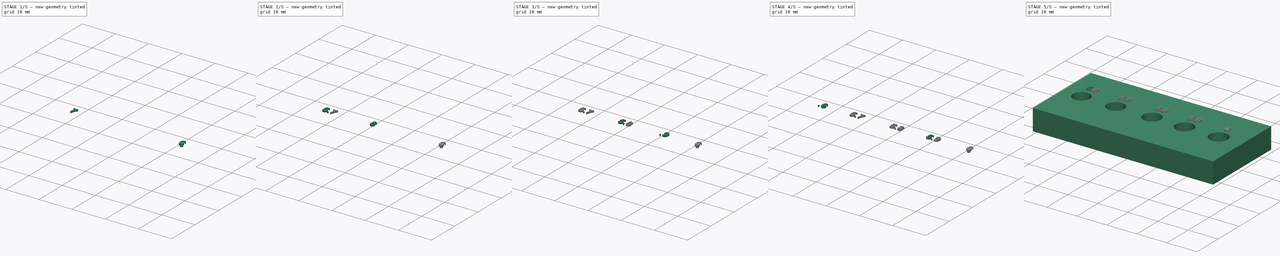
[diagram: build sequence overview — one tinted view per stage of 5, left to right]
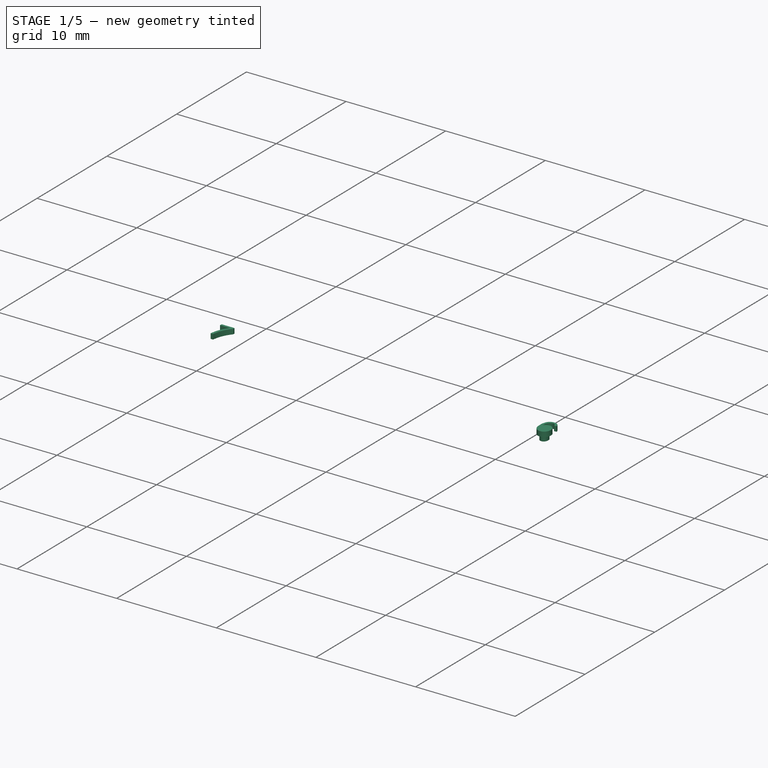
[diagram: stage 1 of 5 — iso view after this stage's code; geometry added in this stage tinted green]
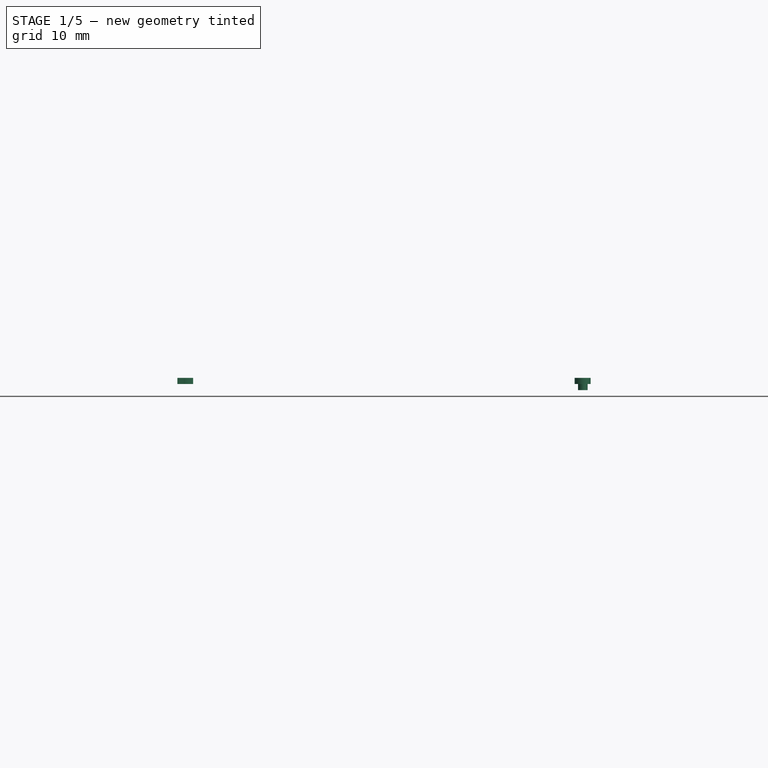
[diagram: stage 1 of 5 — front view after this stage's code; geometry added in this stage tinted green]
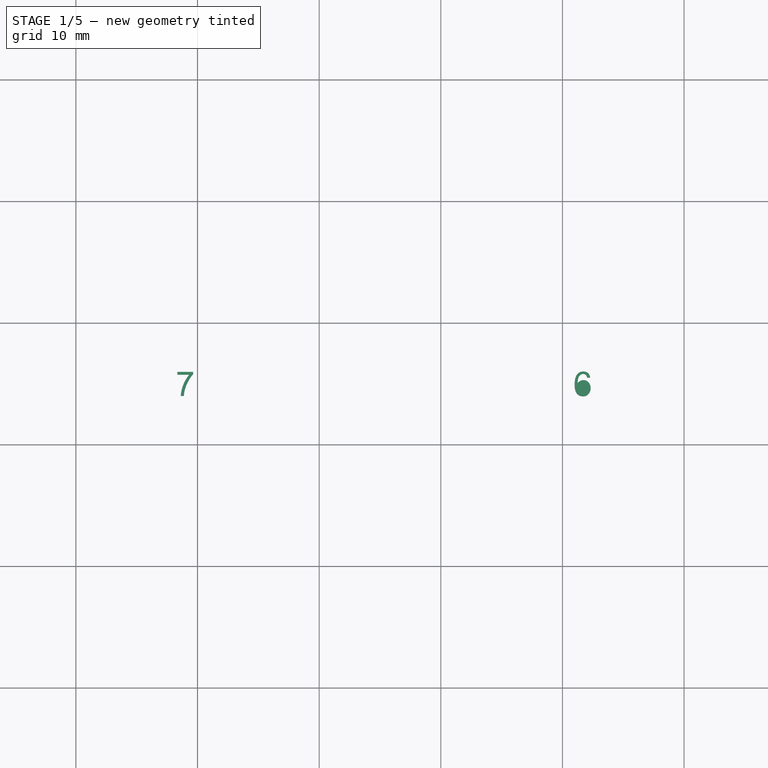
[diagram: stage 1 of 5 — top view after this stage's code; geometry added in this stage tinted green]
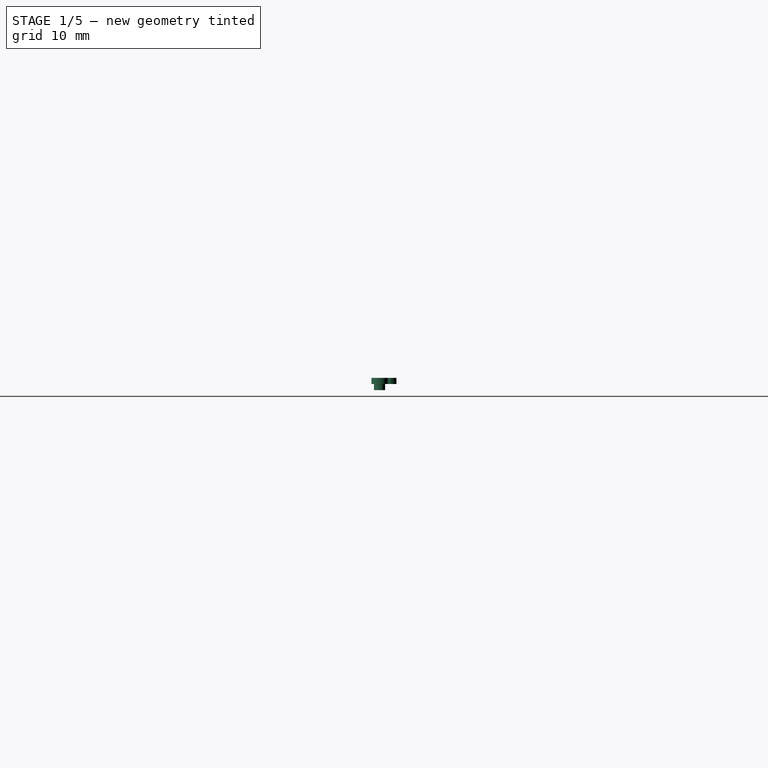
[diagram: stage 1 of 5 — right view after this stage's code; geometry added in this stage tinted green]
FCSTD DOCUMENT  (FreeCAD 1.0R39109 (Git))
Label: HeatSetInserts
License: All rights reserved
LicenseURL: https://en.wikipedia.org/wiki/All_rights_reserved
objects: Part::Feature×14, Part::Extrusion×14, Sketcher::SketchObject×2, PartDesign::Pad×1, PartDesign::Pocket×1, PartDesign::Body×1
note: 39 computed .brp shape members not serialized (recipe doc carries the construction recipe); baked Part::Feature solids carry a one-line shape summary decoded from their .brp

FEATURE [Part::Extrusion] Extrude011
  Base = -> Face011
  Dir = (0,0,1)
  DirMode = 2
  FaceMakerClass = Part::FaceMakerBullseye
  FaceMakerMode = 3
  LengthFwd = 0.5
  LengthRev = 0
  Solid = false
  Symmetric = false
FEATURE [Part::Extrusion] Extrude012
  Base = -> Face012
  Dir = (0,0,1)
  DirMode = 2
  FaceMakerClass = Part::FaceMakerBullseye
  FaceMakerMode = 3
  LengthFwd = 0.5
  LengthRev = 0
  Solid = false
  Symmetric = false
FEATURE [Part::Extrusion] Extrude013
  Base = -> Face013
  Dir = (0,0,-1)
  DirMode = 2
  FaceMakerClass = Part::FaceMakerBullseye
  FaceMakerMode = 3
  LengthFwd = 0.5
  LengthRev = 0
  Solid = false
  Symmetric = false
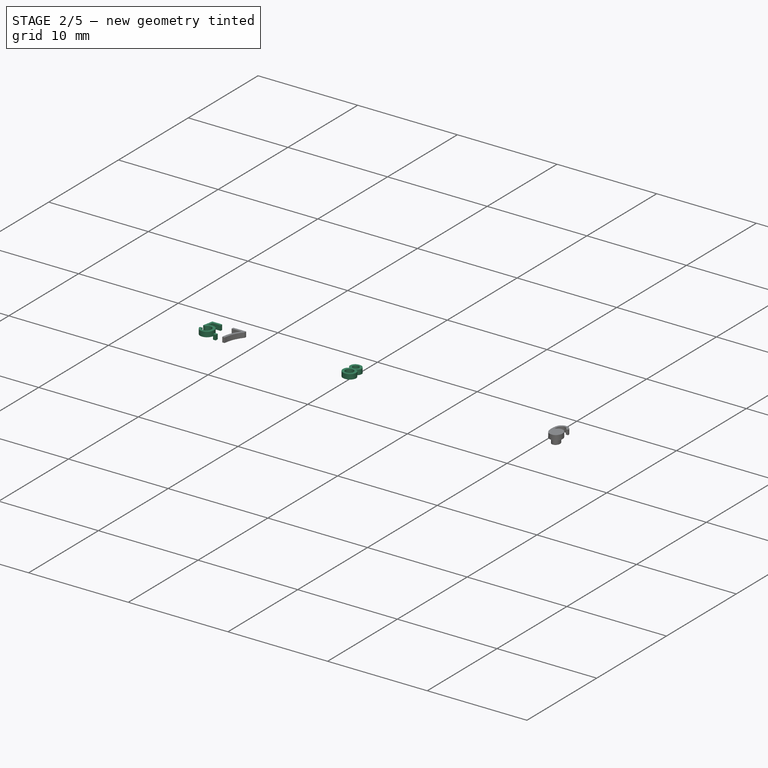
[diagram: stage 2 of 5 — iso view after this stage's code; geometry added in this stage tinted green]
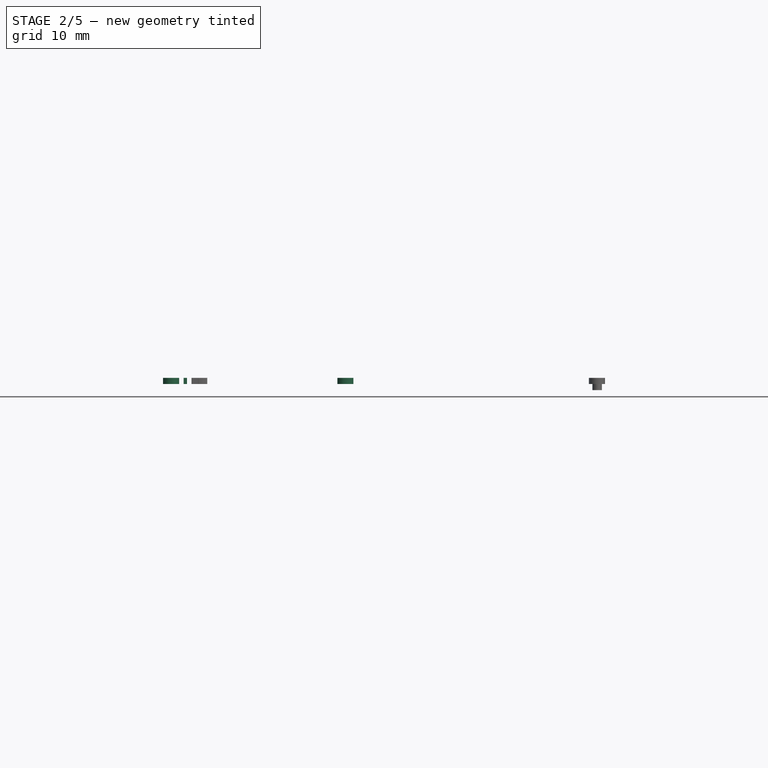
[diagram: stage 2 of 5 — front view after this stage's code; geometry added in this stage tinted green]
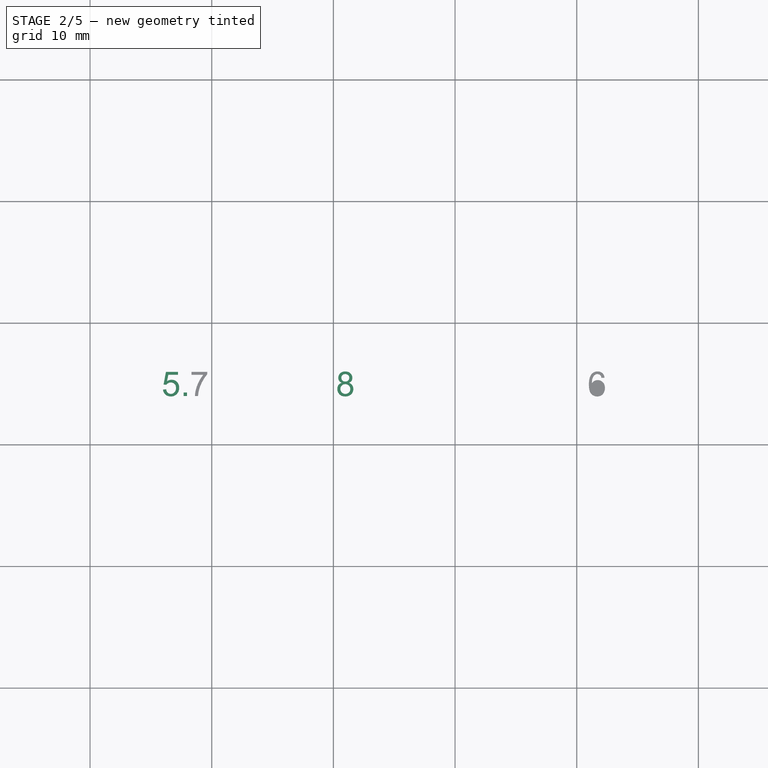
[diagram: stage 2 of 5 — top view after this stage's code; geometry added in this stage tinted green]
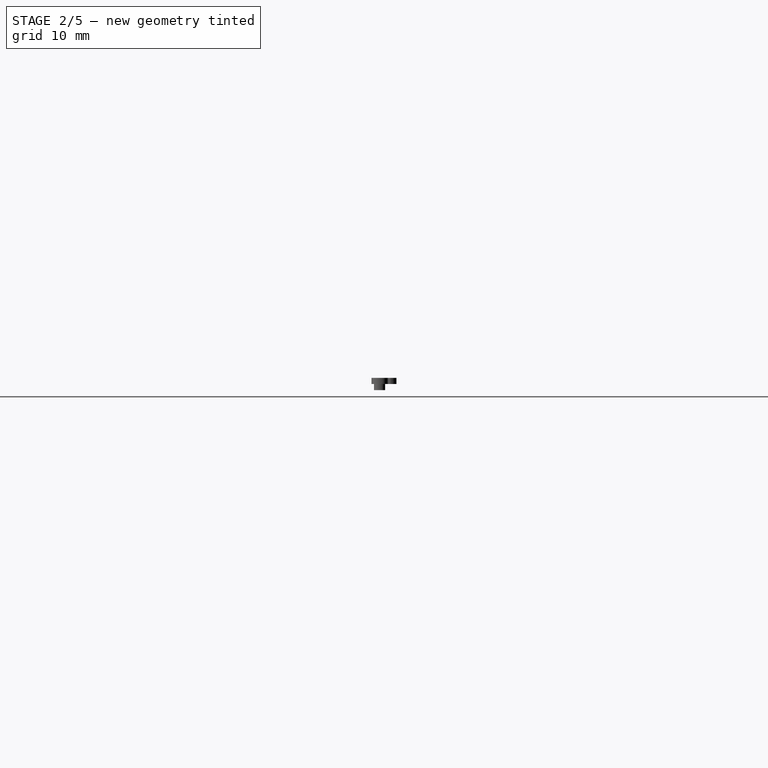
[diagram: stage 2 of 5 — right view after this stage's code; geometry added in this stage tinted green]
FEATURE [Part::Extrusion] Extrude008
  Base = -> Face008
  Dir = (0,0,1)
  DirMode = 2
  FaceMakerClass = Part::FaceMakerBullseye
  FaceMakerMode = 3
  LengthFwd = 0.5
  LengthRev = 0
  Solid = false
  Symmetric = false
FEATURE [Part::Extrusion] Extrude009
  Base = -> Face009
  Dir = (0,0,1)
  DirMode = 2
  FaceMakerClass = Part::FaceMakerBullseye
  FaceMakerMode = 3
  LengthFwd = 0.5
  LengthRev = 0
  Solid = false
  Symmetric = false
FEATURE [Part::Extrusion] Extrude010
  Base = -> Face010
  Dir = (0,0,1)
  DirMode = 2
  FaceMakerClass = Part::FaceMakerBullseye
  FaceMakerMode = 3
  LengthFwd = 0.5
  LengthRev = 0
  Solid = false
  Symmetric = false
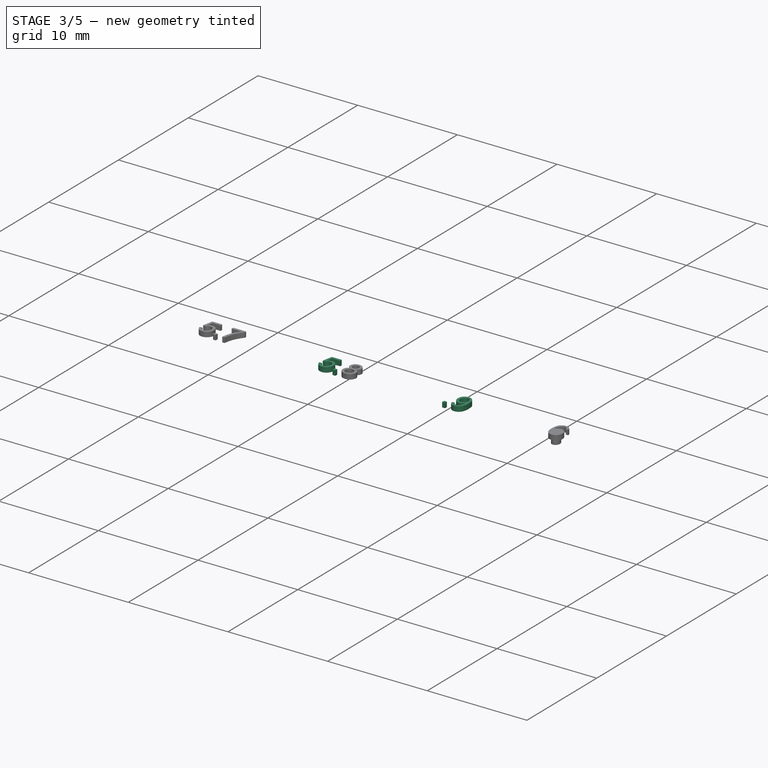
[diagram: stage 3 of 5 — iso view after this stage's code; geometry added in this stage tinted green]
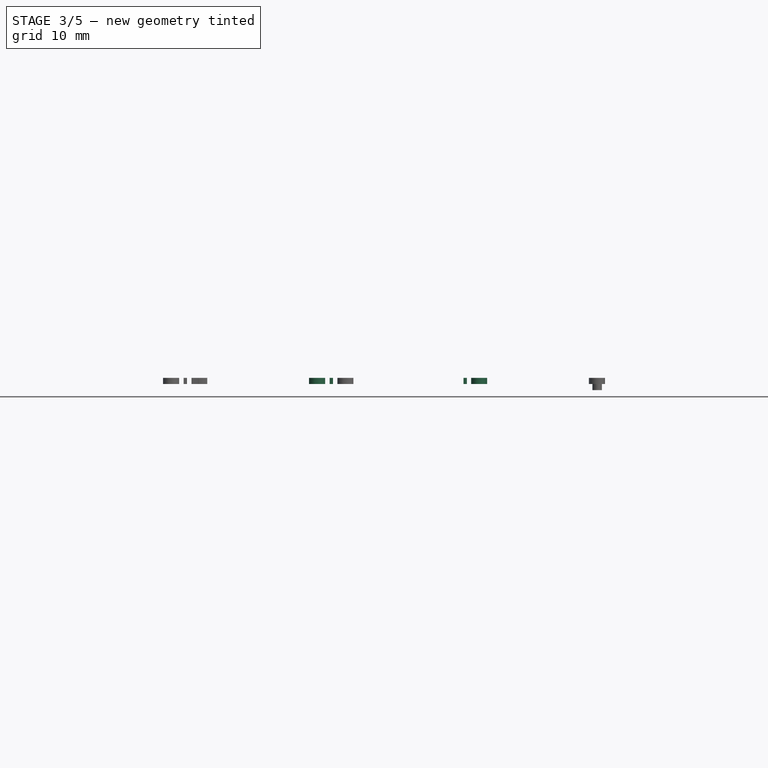
[diagram: stage 3 of 5 — front view after this stage's code; geometry added in this stage tinted green]
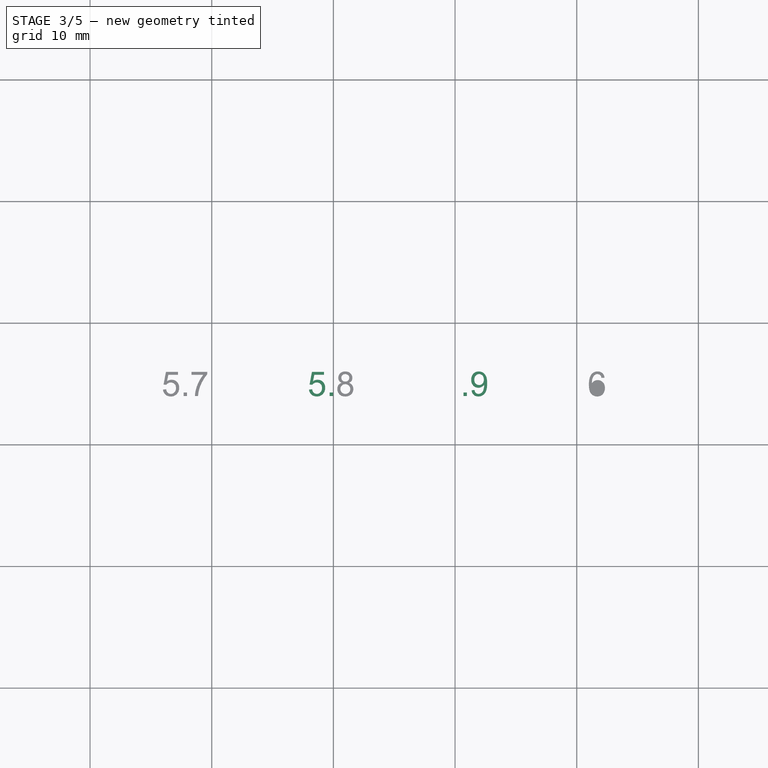
[diagram: stage 3 of 5 — top view after this stage's code; geometry added in this stage tinted green]
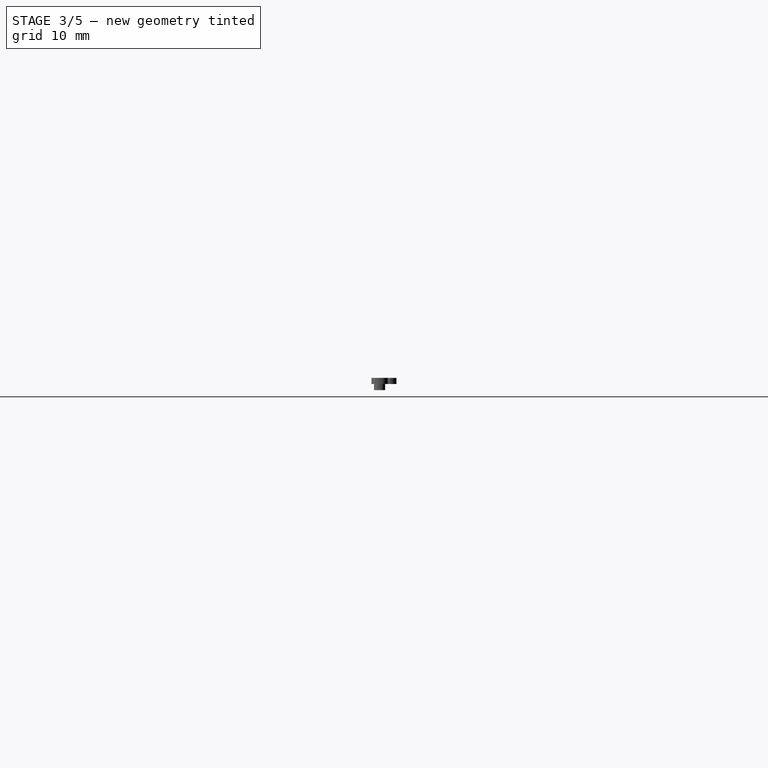
[diagram: stage 3 of 5 — right view after this stage's code; geometry added in this stage tinted green]
FEATURE [Part::Extrusion] Extrude004
  Base = -> Face004
  Dir = (0,0,1)
  DirMode = 2
  FaceMakerClass = Part::FaceMakerBullseye
  FaceMakerMode = 3
  LengthFwd = 0.5
  LengthRev = 0
  Solid = false
  Symmetric = false
FEATURE [Part::Extrusion] Extrude005
  Base = -> Face005
  Dir = (0,0,1)
  DirMode = 2
  FaceMakerClass = Part::FaceMakerBullseye
  FaceMakerMode = 3
  LengthFwd = 0.5
  LengthRev = 0
  Solid = false
  Symmetric = false
FEATURE [Part::Extrusion] Extrude006
  Base = -> Face006
  Dir = (0,0,1)
  DirMode = 2
  FaceMakerClass = Part::FaceMakerBullseye
  FaceMakerMode = 3
  LengthFwd = 0.5
  LengthRev = 0
  Solid = false
  Symmetric = false
FEATURE [Part::Extrusion] Extrude007
  Base = -> Face007
  Dir = (0,0,1)
  DirMode = 2
  FaceMakerClass = Part::FaceMakerBullseye
  FaceMakerMode = 3
  LengthFwd = 0.5
  LengthRev = 0
  Solid = false
  Symmetric = false
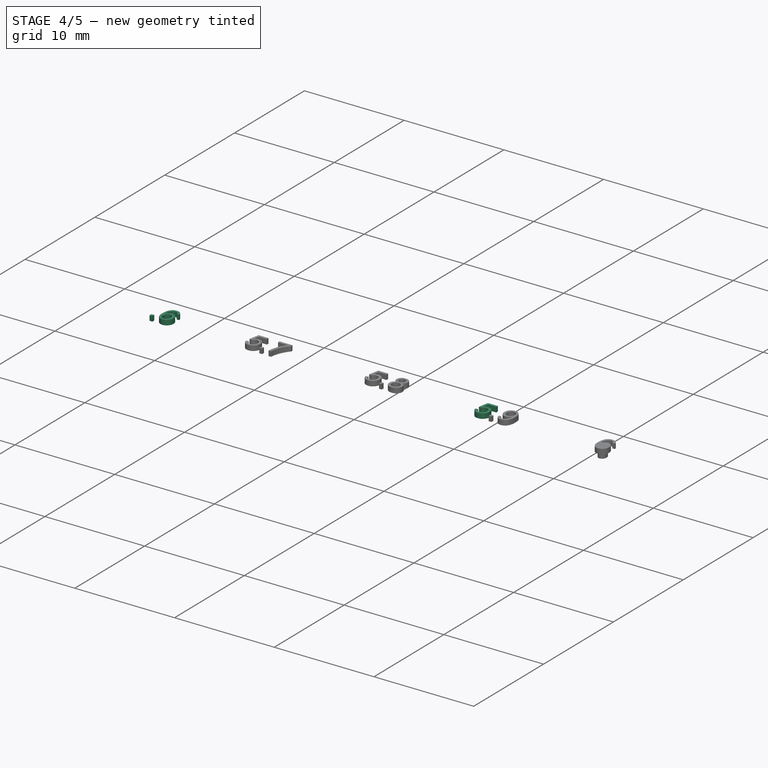
[diagram: stage 4 of 5 — iso view after this stage's code; geometry added in this stage tinted green]
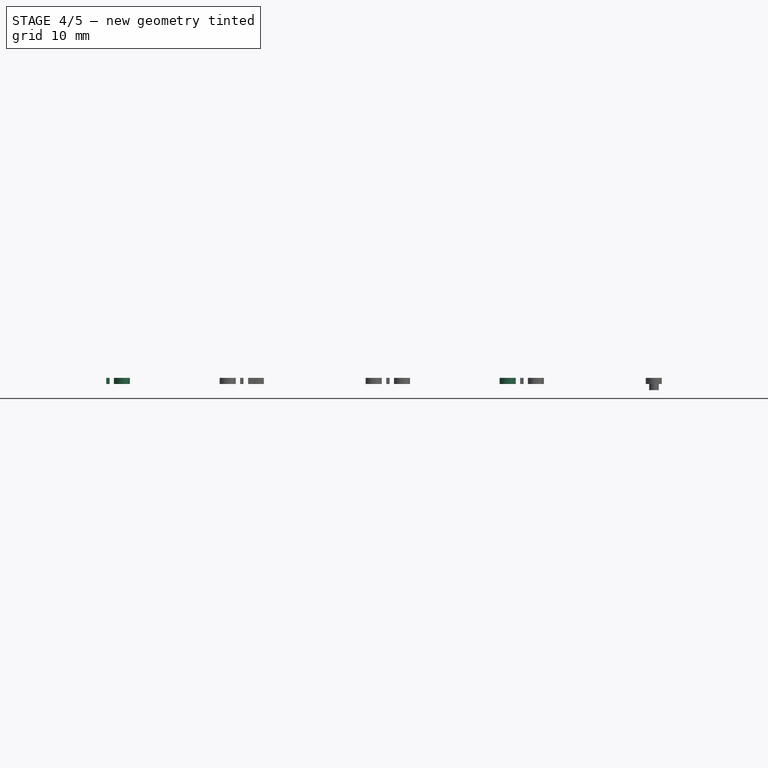
[diagram: stage 4 of 5 — front view after this stage's code; geometry added in this stage tinted green]
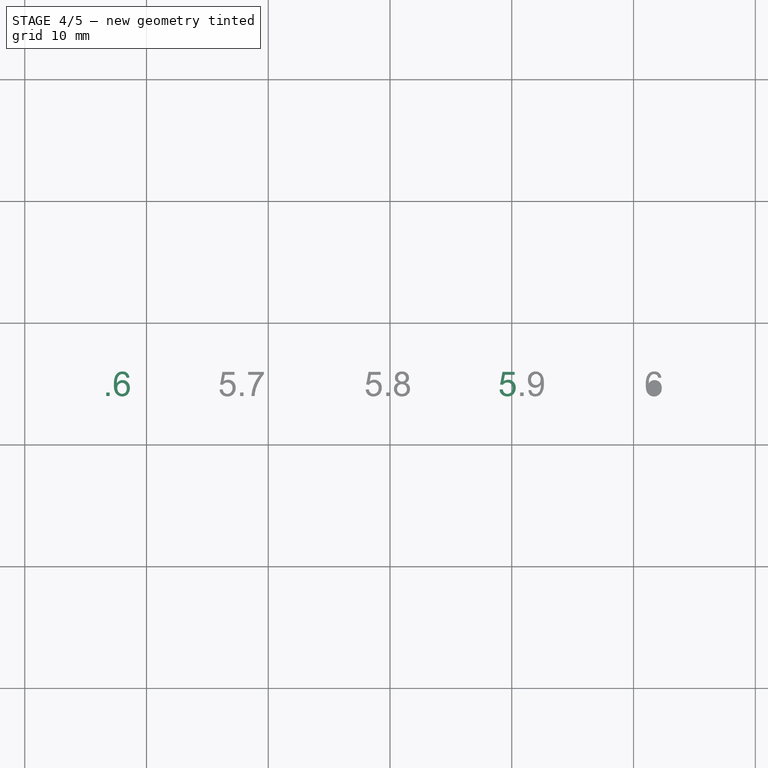
[diagram: stage 4 of 5 — top view after this stage's code; geometry added in this stage tinted green]
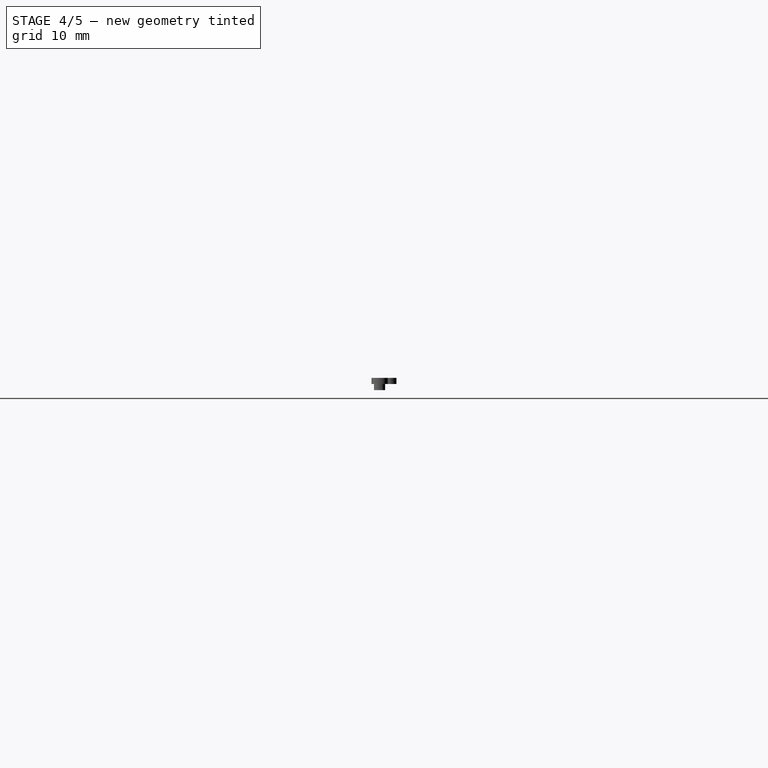
[diagram: stage 4 of 5 — right view after this stage's code; geometry added in this stage tinted green]
FEATURE [Part::Extrusion] Extrude001
  Base = -> Face001
  Dir = (0,0,1)
  DirMode = 2
  FaceMakerClass = Part::FaceMakerBullseye
  FaceMakerMode = 3
  LengthFwd = 0.5
  LengthRev = 0
  Solid = false
  Symmetric = false
FEATURE [Part::Extrusion] Extrude002
  Base = -> Face002
  Dir = (0,0,1)
  DirMode = 2
  FaceMakerClass = Part::FaceMakerBullseye
  FaceMakerMode = 3
  LengthFwd = 0.5
  LengthRev = 0
  Solid = false
  Symmetric = false
FEATURE [Part::Extrusion] Extrude003
  Base = -> Face003
  Dir = (0,0,1)
  DirMode = 2
  FaceMakerClass = Part::FaceMakerBullseye
  FaceMakerMode = 3
  LengthFwd = 0.5
  LengthRev = 0
  Solid = false
  Symmetric = false
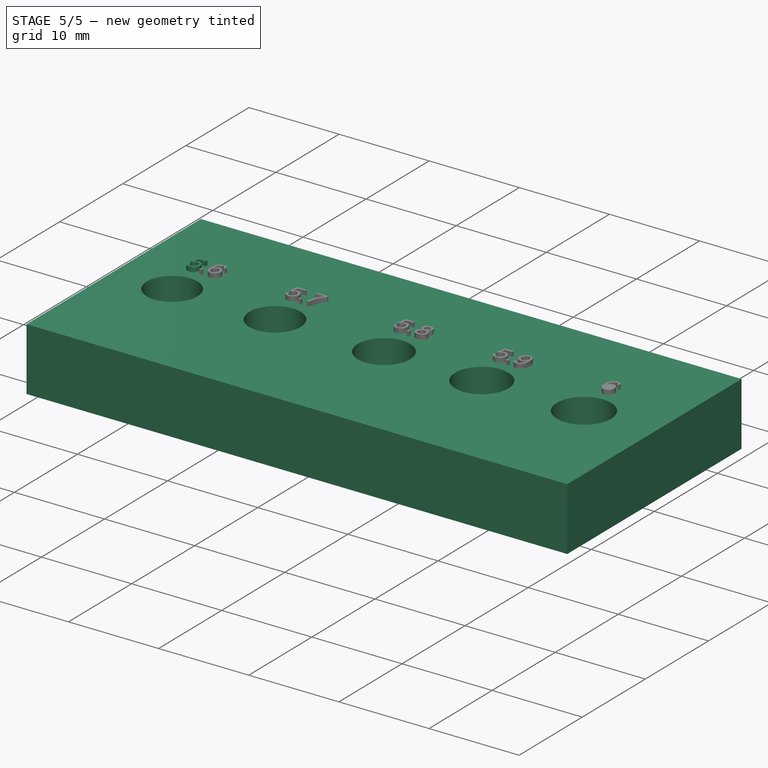
[diagram: stage 5 of 5 — iso view after this stage's code; geometry added in this stage tinted green]
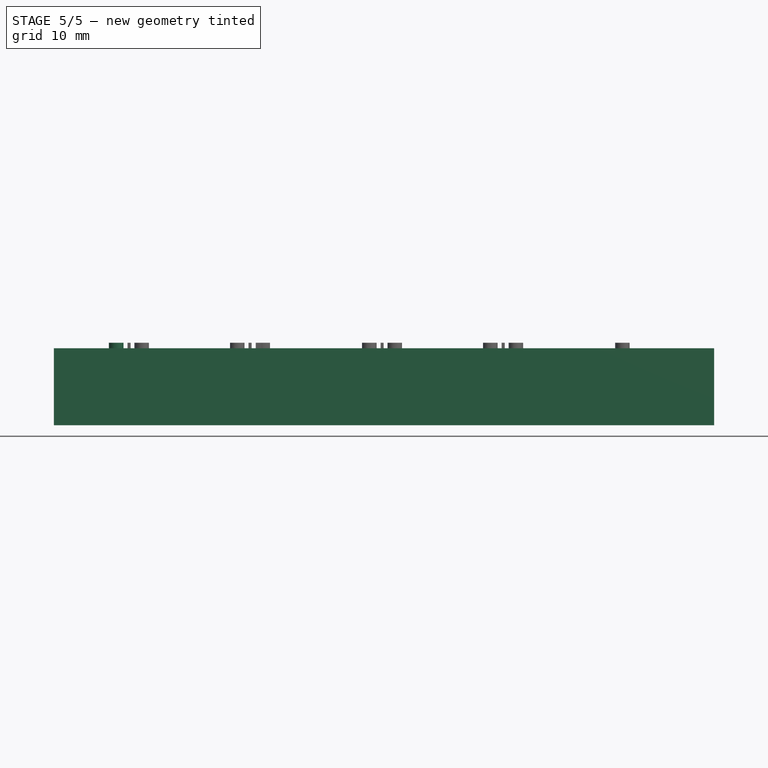
[diagram: stage 5 of 5 — front view after this stage's code; geometry added in this stage tinted green]
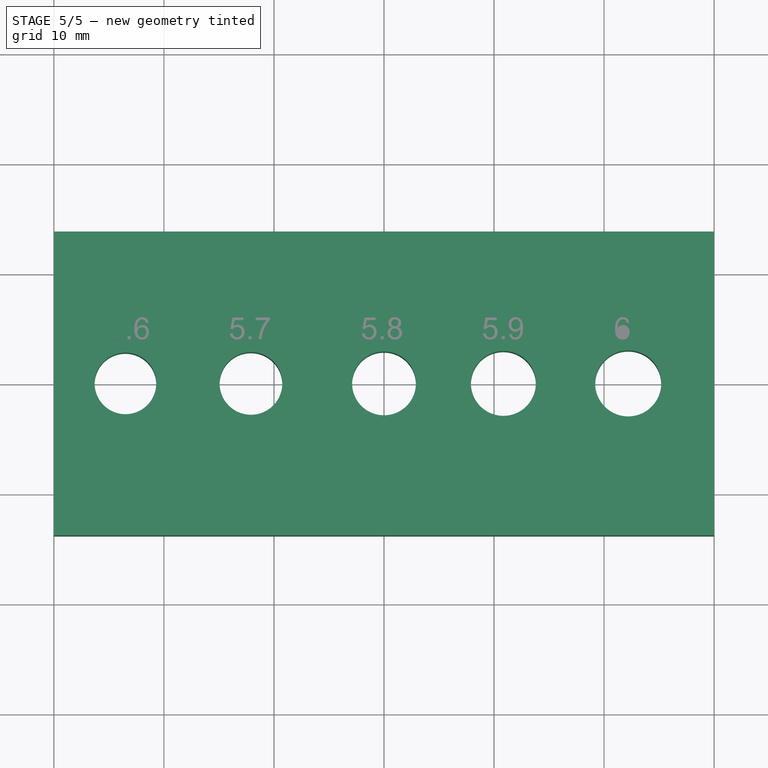
[diagram: stage 5 of 5 — top view after this stage's code; geometry added in this stage tinted green]
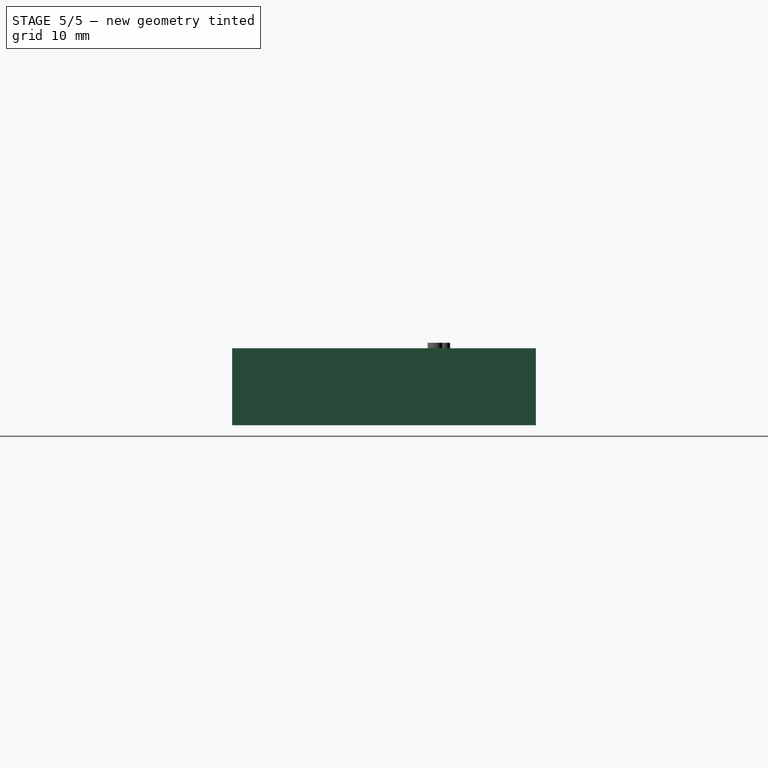
[diagram: stage 5 of 5 — right view after this stage's code; geometry added in this stage tinted green]
FEATURE [Sketcher::SketchObject] Sketch
  ArcFitTolerance = 1e-06
  AttachmentSupport = -> [XY_Plane]
  FullyConstrained = false
  MakeInternals = false
  MapMode = 5
  sketch-geometry (4):
    g0: LineSegment StartX=-30 StartY=13.808 StartZ=0 EndX=-30 EndY=-13.808 EndZ=0
    g1: LineSegment StartX=-30 StartY=-13.808 StartZ=0 EndX=30 EndY=-13.808 EndZ=0
    g2: LineSegment StartX=30 StartY=-13.808 StartZ=0 EndX=30 EndY=13.808 EndZ=0
    g3: LineSegment StartX=30 StartY=13.808 StartZ=0 EndX=-30 EndY=13.808 EndZ=0
  constraints (10):
    c: Coincident(g0,g1)
    c: Coincident(g1,g2)
    c: Coincident(g2,g3)
    c: Coincident(g3,g0)
    c: Vertical(g0)
    c: Vertical(g2)
    c: Horizontal(g1)
    c: Horizontal(g3)
    c: Symmetric(g0,g1,g-1)
    c: DistanceX(g1,g1) = 60  'BottomLength'
FEATURE [PartDesign::Pad] Pad  label="BodyPad"
  Direction = (0,0,1)
  Length = 7
  Length2 = 10
  Profile = -> Sketch
  ReferenceAxis = -> Sketch [N_Axis]
  Refine = true
  Suppressed = false
  Type = 0
FEATURE [Sketcher::SketchObject] Sketch001  label="HoleSketch"
  ArcFitTolerance = 1e-06
  AttachmentSupport = -> [Pad]
  FullyConstrained = false
  MakeInternals = false
  MapMode = 5
  Placement = pos=(0,0,7) rot=(0,0,1;0rad)
  sketch-geometry (5):
    g0: Circle CenterX=-23.4993 CenterY=0 CenterZ=0 NormalX=0 NormalY=0 NormalZ=1 AngleXU=0 Radius=2.8
    g1: Circle CenterX=-12.0921 CenterY=0 CenterZ=0 NormalX=0 NormalY=0 NormalZ=1 AngleXU=0 Radius=2.85
    g2: Circle CenterX=0 CenterY=0 CenterZ=0 NormalX=0 NormalY=0 NormalZ=1 AngleXU=0 Radius=2.9
    g3: Circle CenterX=22.1928 CenterY=0 CenterZ=0 NormalX=0 NormalY=0 NormalZ=1 AngleXU=0 Radius=3
    g4: Circle CenterX=10.849 CenterY=0 CenterZ=0 NormalX=0 NormalY=0 NormalZ=1 AngleXU=0 Radius=2.95
  constraints (10):
    c: Diameter(g0) = 5.6
    c: PointOnObject(g0,g-1)
    c: Diameter(g1) = 5.7
    c: Diameter(g2) = 5.8
    c: Diameter(g4) = 5.9
    c: Diameter(g3) = 6
    c: PointOnObject(g4,g-1)
    c: PointOnObject(g1,g-1)
    c: PointOnObject(g2,g-1)
    c: PointOnObject(g3,g-1)
FEATURE [PartDesign::Pocket] Pocket  label="PocketHoles"
  BaseFeature = -> Pad
  Direction = (0,0,-1)
  Length = 5
  Length2 = 5
  Profile = -> Sketch001
  ReferenceAxis = -> Sketch001 [N_Axis]
  Refine = true
  Suppressed = false
  Type = 1
FEATURE [PartDesign::Body] Body
  AllowCompound = false
  Group = -> [Sketch,Pad,Sketch001,Pocket]
  Origin = -> Origin
  Tip = -> Pocket
FEATURE [Part::Feature] Face
  Placement = pos=(-25.1158,4,7) rot=(0,0,1;0rad)
  shape: bbox 1.324 x 2.012 x 2.139e-07 mm, 1 faces, 0 solids (baked)
FEATURE [Part::Feature] Face001
  Placement = pos=(-25.1158,4,7) rot=(0,0,1;0rad)
  shape: bbox 0.2793 x 0.2791 x 2.139e-07 mm, 1 faces, 0 solids (baked)
FEATURE [Part::Feature] Face002
  Placement = pos=(-25.1158,4,7) rot=(0,0,1;0rad)
  shape: bbox 1.319 x 2.047 x 2.139e-07 mm, 1 faces, 0 solids (baked)
FEATURE [Part::Feature] Face003
  Placement = pos=(8.88418,4,7) rot=(0,0,1;0rad)
  shape: bbox 1.324 x 2.012 x 2.139e-07 mm, 1 faces, 0 solids (baked)
FEATURE [Part::Feature] Face004
  Placement = pos=(8.88418,4,7) rot=(0,0,1;0rad)
  shape: bbox 0.2793 x 0.2791 x 2.139e-07 mm, 1 faces, 0 solids (baked)
FEATURE [Part::Feature] Face005
  Placement = pos=(8.88418,4,7) rot=(0,0,1;0rad)
  shape: bbox 1.314 x 2.047 x 2.139e-07 mm, 1 faces, 0 solids (baked)
FEATURE [Part::Feature] Face006
  Placement = pos=(-2.11582,4,7) rot=(0,0,1;0rad)
  shape: bbox 1.324 x 2.012 x 2.139e-07 mm, 1 faces, 0 solids (baked)
FEATURE [Part::Feature] Face007
  Placement = pos=(-2.11582,4,7) rot=(0,0,1;0rad)
  shape: bbox 0.2793 x 0.2791 x 2.139e-07 mm, 1 faces, 0 solids (baked)
FEATURE [Part::Feature] Face008
  Placement = pos=(-2.11582,4,7) rot=(0,0,1;0rad)
  shape: bbox 1.316 x 2.047 x 2.139e-07 mm, 1 faces, 0 solids (baked)
FEATURE [Part::Feature] Face009
  Placement = pos=(-14.1158,4,7) rot=(0,0,1;0rad)
  shape: bbox 1.324 x 2.012 x 2.139e-07 mm, 1 faces, 0 solids (baked)
FEATURE [Part::Feature] Face010
  Placement = pos=(-14.1158,4,7) rot=(0,0,1;0rad)
  shape: bbox 0.2793 x 0.2791 x 2.139e-07 mm, 1 faces, 0 solids (baked)
FEATURE [Part::Feature] Face011
  Placement = pos=(-14.1158,4,7) rot=(0,0,1;0rad)
  shape: bbox 1.293 x 1.977 x 2.139e-07 mm, 1 faces, 0 solids (baked)
FEATURE [Part::Feature] Face012
  shape: bbox 1.319 x 2.047 x 2.139e-07 mm, 1 faces, 0 solids (baked)
FEATURE [Part::Feature] Face013
  shape: bbox 0.7862 x 0.9157 x 2.139e-07 mm, 1 faces, 0 solids (baked)
FEATURE [Part::Extrusion] Extrude
  Base = -> Face
  Dir = (0,0,1)
  DirMode = 2
  FaceMakerClass = Part::FaceMakerBullseye
  FaceMakerMode = 3
  LengthFwd = 0.5
  LengthRev = 0
  Solid = false
  Symmetric = false
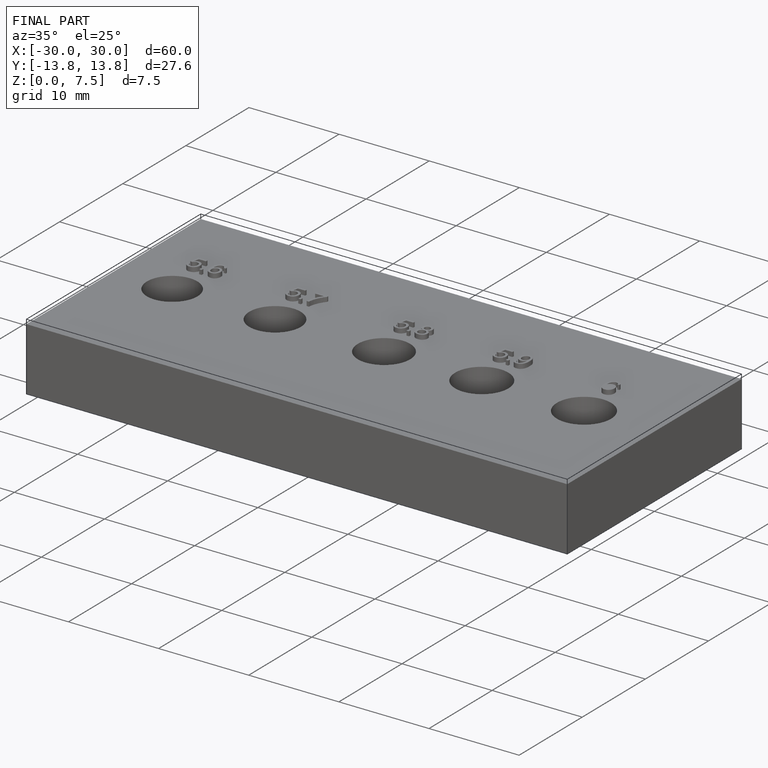
[diagram: finished part — iso view with bounding-box wireframe]
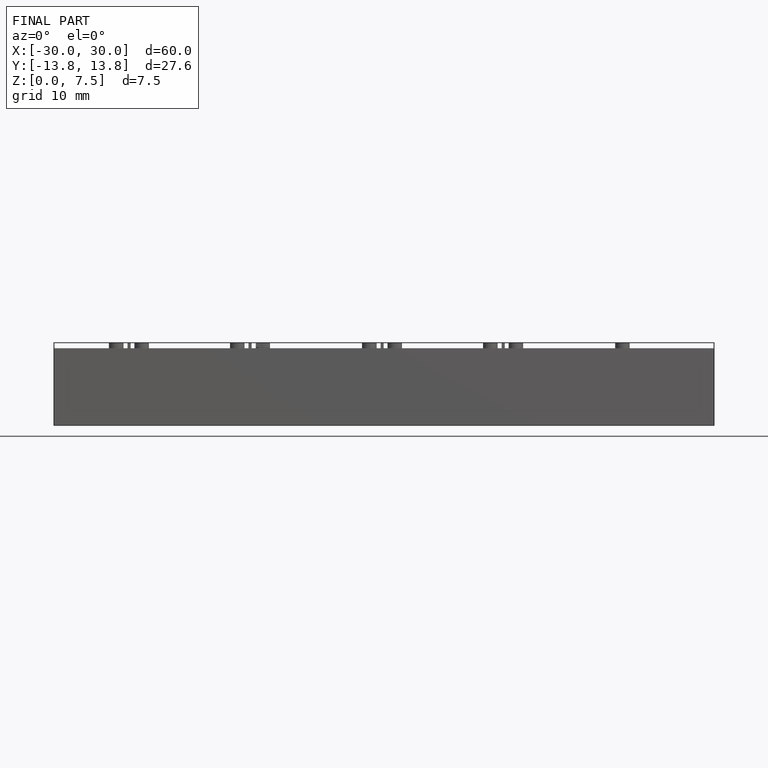
[diagram: finished part — front view with bounding-box wireframe]
